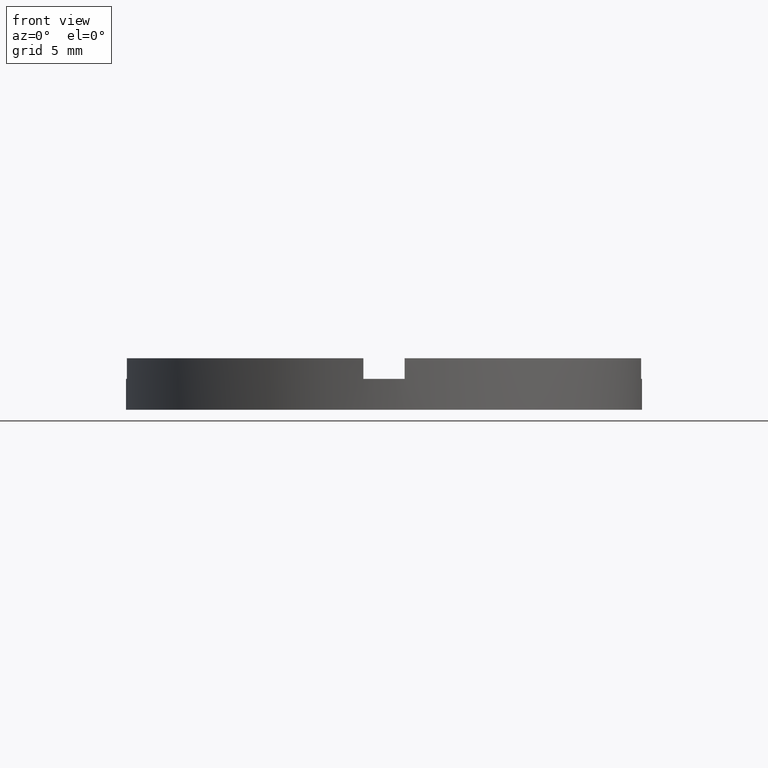
[diagram: clean part render]
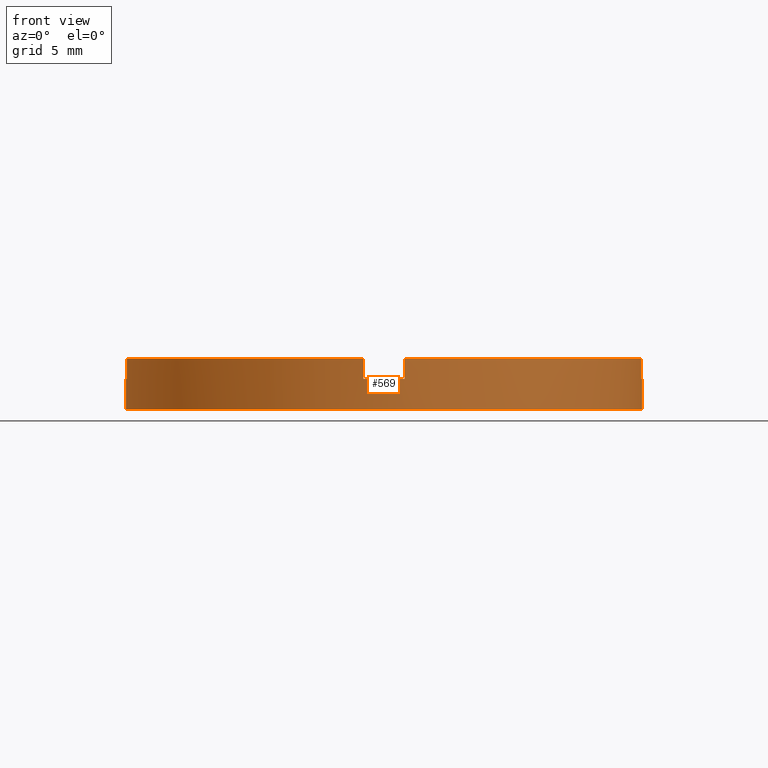
[diagram: same view with one face highlighted and labeled with its STEP entity id]
A machine part, front view. The second image highlights one B-rep face of the part: STEP entity #569.
In plain terms, the highlighted cylindrical surface (partial cylindrical patch) has radius 12.5 mm, axis along (-0, -0, -1).
Its self-contained STEP definition (entity closure, byte-faithful):
#11 = CARTESIAN_POINT ( 'NONE',  ( -12.50000000000000000, 0.000000000000000000, 0.000000000000000000 ) ) ;
#19 = EDGE_CURVE ( 'NONE', #520, #740, #130, .T. ) ;
#30 = DIRECTION ( 'NONE',  ( 1.000000000000000000, 0.000000000000000000, 0.000000000000000000 ) ) ;
#35 = DIRECTION ( 'NONE',  ( 0.000000000000000000, 0.000000000000000000, 1.000000000000000000 ) ) ;
#37 = DIRECTION ( 'NONE',  ( 0.000000000000000000, 0.000000000000000000, 1.000000000000000000 ) ) ;
#53 = DIRECTION ( 'NONE',  ( 0.000000000000000000, 0.000000000000000000, 1.000000000000000000 ) ) ;
#63 = DIRECTION ( 'NONE',  ( 1.000000000000000000, 0.000000000000000000, 0.000000000000000000 ) ) ;
#76 = DIRECTION ( 'NONE',  ( -0.000000000000000000, -0.000000000000000000, -1.000000000000000000 ) ) ;
#86 = AXIS2_PLACEMENT_3D ( 'NONE', #239, #324, #725 ) ;
#96 = EDGE_LOOP ( 'NONE', ( #406, #379, #250, #437, #656, #211, #682, #155, #517, #768, #736, #435 ) ) ;
#102 = VERTEX_POINT ( 'NONE', #169 ) ;
#110 = CIRCLE ( 'NONE', #152, 12.50000000000000000 ) ;
#120 = LINE ( 'NONE', #533, #662 ) ;
#127 = DIRECTION ( 'NONE',  ( -0.000000000000000000, -0.000000000000000000, -1.000000000000000000 ) ) ;
#130 = CIRCLE ( 'NONE', #560, 12.50000000000000000 ) ;
#135 = DIRECTION ( 'NONE',  ( 1.000000000000000000, 0.000000000000000000, 0.000000000000000000 ) ) ;
#152 = AXIS2_PLACEMENT_3D ( 'NONE', #718, #37, #135 ) ;
#155 = ORIENTED_EDGE ( 'NONE', *, *, #19, .F. ) ;
#157 = CARTESIAN_POINT ( 'NONE',  ( 0.000000000000000000, 0.000000000000000000, 0.000000000000000000 ) ) ;
#169 = CARTESIAN_POINT ( 'NONE',  ( 0.9999999999998363531, -12.45993579437712739, 1.500000000000000000 ) ) ;
#171 = LINE ( 'NONE', #215, #186 ) ;
#180 = VECTOR ( 'NONE', #585, 1000.000000000000000 ) ;
#181 = EDGE_CURVE ( 'NONE', #254, #507, #694, .T. ) ;
#186 = VECTOR ( 'NONE', #277, 1000.000000000000000 ) ;
#190 = DIRECTION ( 'NONE',  ( 0.000000000000000000, 0.000000000000000000, 1.000000000000000000 ) ) ;
#199 = AXIS2_PLACEMENT_3D ( 'NONE', #781, #374, #474 ) ;
#211 = ORIENTED_EDGE ( 'NONE', *, *, #598, .F. ) ;
#215 = CARTESIAN_POINT ( 'NONE',  ( -12.50000000000000000, 0.000000000000000000, 2.500000000000000000 ) ) ;
#231 = CARTESIAN_POINT ( 'NONE',  ( 12.50000000000000000, 1.530808498934191521E-15, 0.000000000000000000 ) ) ;
#237 = EDGE_CURVE ( 'NONE', #257, #494, #171, .T. ) ;
#239 = CARTESIAN_POINT ( 'NONE',  ( 0.000000000000000000, 0.000000000000000000, 1.500000000000000000 ) ) ;
#250 = ORIENTED_EDGE ( 'NONE', *, *, #181, .T. ) ;
#254 = VERTEX_POINT ( 'NONE', #355 ) ;
#256 = CARTESIAN_POINT ( 'NONE',  ( 12.45993579437710075, -1.000000000000159872, 2.500000000000000000 ) ) ;
#257 = VERTEX_POINT ( 'NONE', #602 ) ;
#261 = CARTESIAN_POINT ( 'NONE',  ( -1.000000000000163647, -12.45993579437710075, 2.500000000000000000 ) ) ;
#277 = DIRECTION ( 'NONE',  ( -0.000000000000000000, -0.000000000000000000, -1.000000000000000000 ) ) ;
#279 = EDGE_CURVE ( 'NONE', #623, #507, #691, .T. ) ;
#286 = EDGE_CURVE ( 'NONE', #623, #102, #445, .T. ) ;
#290 = DIRECTION ( 'NONE',  ( 0.000000000000000000, 0.000000000000000000, 1.000000000000000000 ) ) ;
#324 = DIRECTION ( 'NONE',  ( -0.000000000000000000, 0.000000000000000000, 1.000000000000000000 ) ) ;
#334 = CARTESIAN_POINT ( 'NONE',  ( 12.50000000000000000, 1.530808498934191521E-15, 1.500000000000000000 ) ) ;
#339 = CARTESIAN_POINT ( 'NONE',  ( -12.45993579437711141, -1.000000000000022204, 1.500000000000000000 ) ) ;
#344 = CARTESIAN_POINT ( 'NONE',  ( 0.000000000000000000, 0.000000000000000000, 2.500000000000000000 ) ) ;
#346 = DIRECTION ( 'NONE',  ( 1.000000000000000000, 0.000000000000000000, 0.000000000000000000 ) ) ;
#355 = CARTESIAN_POINT ( 'NONE',  ( 12.45993579437710075, -1.000000000000159872, 1.500000000000000000 ) ) ;
#361 = CARTESIAN_POINT ( 'NONE',  ( -1.000000000000163647, -12.45993579437710075, 1.500000000000000000 ) ) ;
#369 = LINE ( 'NONE', #468, #378 ) ;
#374 = DIRECTION ( 'NONE',  ( -0.000000000000000000, -0.000000000000000000, -1.000000000000000000 ) ) ;
#378 = VECTOR ( 'NONE', #76, 1000.000000000000000 ) ;
#379 = ORIENTED_EDGE ( 'NONE', *, *, #685, .F. ) ;
#388 = EDGE_CURVE ( 'NONE', #417, #740, #459, .T. ) ;
#406 = ORIENTED_EDGE ( 'NONE', *, *, #453, .F. ) ;
#417 = VERTEX_POINT ( 'NONE', #361 ) ;
#435 = ORIENTED_EDGE ( 'NONE', *, *, #596, .T. ) ;
#437 = ORIENTED_EDGE ( 'NONE', *, *, #279, .F. ) ;
#443 = VECTOR ( 'NONE', #452, 1000.000000000000000 ) ;
#445 = LINE ( 'NONE', #597, #443 ) ;
#452 = DIRECTION ( 'NONE',  ( -0.000000000000000000, -0.000000000000000000, -1.000000000000000000 ) ) ;
#453 = EDGE_CURVE ( 'NONE', #646, #675, #120, .T. ) ;
#459 = LINE ( 'NONE', #522, #716 ) ;
#468 = CARTESIAN_POINT ( 'NONE',  ( -12.45993579437711141, -1.000000000000022204, 2.500000000000000000 ) ) ;
#474 = DIRECTION ( 'NONE',  ( -1.000000000000000000, 0.000000000000000000, 0.000000000000000000 ) ) ;
#494 = VERTEX_POINT ( 'NONE', #11 ) ;
#507 = VERTEX_POINT ( 'NONE', #256 ) ;
#517 = ORIENTED_EDGE ( 'NONE', *, *, #532, .T. ) ;
#520 = VERTEX_POINT ( 'NONE', #625 ) ;
#522 = CARTESIAN_POINT ( 'NONE',  ( -1.000000000000163647, -12.45993579437710075, 2.500000000000000000 ) ) ;
#532 = EDGE_CURVE ( 'NONE', #520, #731, #369, .T. ) ;
#533 = CARTESIAN_POINT ( 'NONE',  ( 12.50000000000000000, 1.530808498934191521E-15, 2.500000000000000000 ) ) ;
#545 = CARTESIAN_POINT ( 'NONE',  ( 12.45993579437710075, -1.000000000000159872, 2.500000000000000000 ) ) ;
#557 = AXIS2_PLACEMENT_3D ( 'NONE', #769, #290, #30 ) ;
#560 = AXIS2_PLACEMENT_3D ( 'NONE', #659, #53, #63 ) ;
#561 = EDGE_CURVE ( 'NONE', #257, #731, #110, .T. ) ;
#562 = CIRCLE ( 'NONE', #557, 12.50000000000000000 ) ;
#565 = DIRECTION ( 'NONE',  ( 0.000000000000000000, 0.000000000000000000, 1.000000000000000000 ) ) ;
#569 = ADVANCED_FACE ( 'NONE', ( #617 ), #650, .T. ) ;
#571 = DIRECTION ( 'NONE',  ( 1.000000000000000000, 0.000000000000000000, 0.000000000000000000 ) ) ;
#585 = DIRECTION ( 'NONE',  ( 0.000000000000000000, 0.000000000000000000, 1.000000000000000000 ) ) ;
#596 = EDGE_CURVE ( 'NONE', #494, #675, #698, .T. ) ;
#597 = CARTESIAN_POINT ( 'NONE',  ( 0.9999999999998363531, -12.45993579437712739, 2.500000000000000000 ) ) ;
#598 = EDGE_CURVE ( 'NONE', #417, #102, #702, .T. ) ;
#602 = CARTESIAN_POINT ( 'NONE',  ( -12.50000000000000000, 0.000000000000000000, 1.500000000000000000 ) ) ;
#616 = CARTESIAN_POINT ( 'NONE',  ( 0.9999999999998363531, -12.45993579437712739, 2.500000000000000000 ) ) ;
#617 = FACE_OUTER_BOUND ( 'NONE', #96, .T. ) ;
#621 = AXIS2_PLACEMENT_3D ( 'NONE', #157, #35, #571 ) ;
#623 = VERTEX_POINT ( 'NONE', #616 ) ;
#625 = CARTESIAN_POINT ( 'NONE',  ( -12.45993579437711141, -1.000000000000022204, 2.500000000000000000 ) ) ;
#646 = VERTEX_POINT ( 'NONE', #334 ) ;
#650 = CYLINDRICAL_SURFACE ( 'NONE', #199, 12.50000000000000000 ) ;
#656 = ORIENTED_EDGE ( 'NONE', *, *, #286, .T. ) ;
#659 = CARTESIAN_POINT ( 'NONE',  ( 0.000000000000000000, 0.000000000000000000, 2.500000000000000000 ) ) ;
#662 = VECTOR ( 'NONE', #127, 1000.000000000000000 ) ;
#675 = VERTEX_POINT ( 'NONE', #231 ) ;
#682 = ORIENTED_EDGE ( 'NONE', *, *, #388, .T. ) ;
#685 = EDGE_CURVE ( 'NONE', #254, #646, #562, .T. ) ;
#691 = CIRCLE ( 'NONE', #724, 12.50000000000000000 ) ;
#694 = LINE ( 'NONE', #545, #180 ) ;
#698 = CIRCLE ( 'NONE', #621, 12.50000000000000000 ) ;
#702 = CIRCLE ( 'NONE', #86, 12.50000000000000000 ) ;
#716 = VECTOR ( 'NONE', #565, 1000.000000000000000 ) ;
#718 = CARTESIAN_POINT ( 'NONE',  ( 0.000000000000000000, 0.000000000000000000, 1.500000000000000000 ) ) ;
#724 = AXIS2_PLACEMENT_3D ( 'NONE', #344, #190, #346 ) ;
#725 = DIRECTION ( 'NONE',  ( 1.000000000000000000, 0.000000000000000000, 0.000000000000000000 ) ) ;
#731 = VERTEX_POINT ( 'NONE', #339 ) ;
#736 = ORIENTED_EDGE ( 'NONE', *, *, #237, .T. ) ;
#740 = VERTEX_POINT ( 'NONE', #261 ) ;
#768 = ORIENTED_EDGE ( 'NONE', *, *, #561, .F. ) ;
#769 = CARTESIAN_POINT ( 'NONE',  ( 0.000000000000000000, 0.000000000000000000, 1.500000000000000000 ) ) ;
#781 = CARTESIAN_POINT ( 'NONE',  ( 0.000000000000000000, 0.000000000000000000, 2.500000000000000000 ) ) ;